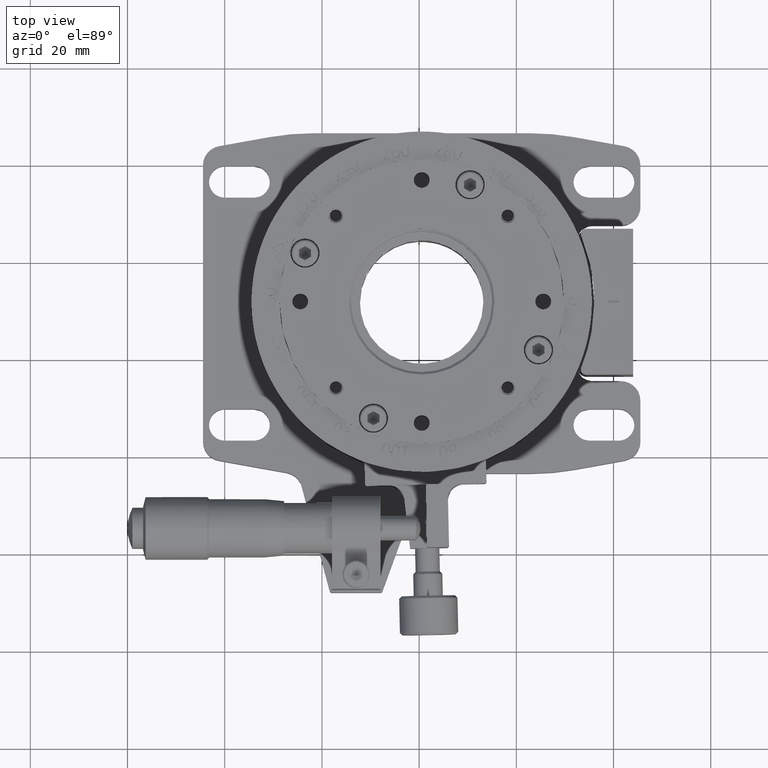
[diagram: clean part render]
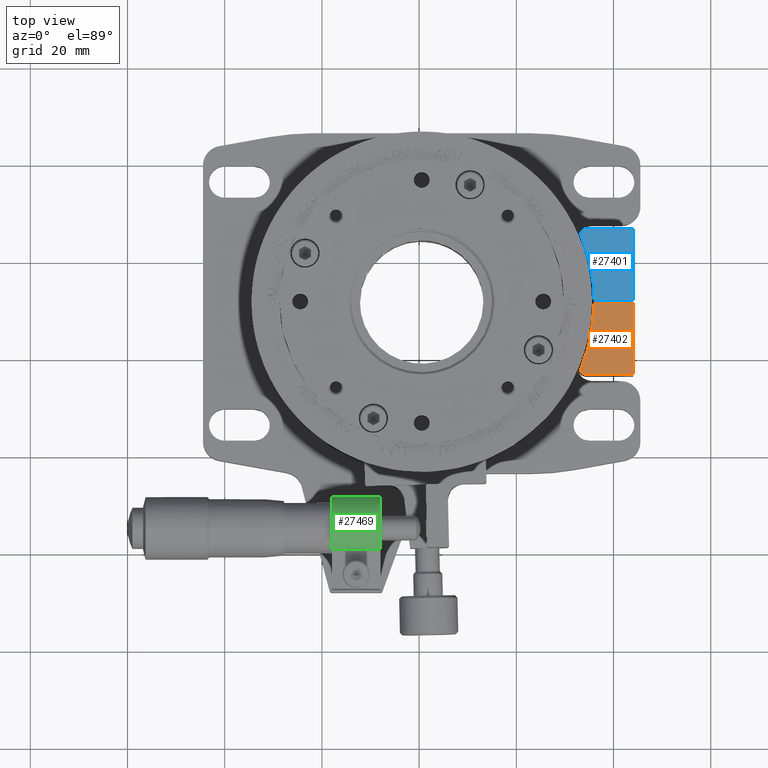
[diagram: same view with three faces highlighted in distinct colors, each labeled with its STEP entity id]
A machine part, top view with three faces highlighted in distinct colors.
Their STEP definitions:

[orange] entity #27402 — the highlighted face is a freeform B-spline surface patch.
#2525=(
BOUNDED_CURVE()
B_SPLINE_CURVE(2,(#161031,#161032,#161033,#161034,#161035),
 .UNSPECIFIED.,.F.,.F.)
B_SPLINE_CURVE_WITH_KNOTS((3,2,3),(-1.68370861659678,-0.841854308298392,
0.),.UNSPECIFIED.)
CURVE()
GEOMETRIC_REPRESENTATION_ITEM()
RATIONAL_B_SPLINE_CURVE((1.,0.912710491118177,1.,0.912710491118177,1.))
REPRESENTATION_ITEM('')
);
#2526=(
BOUNDED_CURVE()
B_SPLINE_CURVE(2,(#161036,#161037,#161038,#161039,#161040),
 .UNSPECIFIED.,.F.,.F.)
B_SPLINE_CURVE_WITH_KNOTS((3,2,3),(-1.68370861659678,-0.841854308298392,
0.),.UNSPECIFIED.)
CURVE()
GEOMETRIC_REPRESENTATION_ITEM()
RATIONAL_B_SPLINE_CURVE((1.,0.912710491118177,1.,0.912710491118177,1.))
REPRESENTATION_ITEM('')
);
#2527=(
BOUNDED_CURVE()
B_SPLINE_CURVE(2,(#161041,#161042,#161043),.UNSPECIFIED.,.F.,.F.)
B_SPLINE_CURVE_WITH_KNOTS((3,3),(-0.5591717524736,0.),.UNSPECIFIED.)
CURVE()
GEOMETRIC_REPRESENTATION_ITEM()
RATIONAL_B_SPLINE_CURVE((1.,0.990244869044745,1.))
REPRESENTATION_ITEM('')
);
#2528=(
BOUNDED_CURVE()
B_SPLINE_CURVE(2,(#161044,#161045,#161046),.UNSPECIFIED.,.F.,.F.)
B_SPLINE_CURVE_WITH_KNOTS((3,3),(-0.5591717524736,0.),.UNSPECIFIED.)
CURVE()
GEOMETRIC_REPRESENTATION_ITEM()
RATIONAL_B_SPLINE_CURVE((1.,0.990244869044745,1.))
REPRESENTATION_ITEM('')
);
#2529=(
BOUNDED_CURVE()
B_SPLINE_CURVE(2,(#161059,#161060,#161061),.UNSPECIFIED.,.F.,.F.)
B_SPLINE_CURVE_WITH_KNOTS((3,3),(-13.7336838363691,0.),.UNSPECIFIED.)
CURVE()
GEOMETRIC_REPRESENTATION_ITEM()
RATIONAL_B_SPLINE_CURVE((1.,0.981350266102203,1.))
REPRESENTATION_ITEM('')
);
#2530=(
BOUNDED_CURVE()
B_SPLINE_CURVE(2,(#161062,#161063,#161064),.UNSPECIFIED.,.F.,.F.)
B_SPLINE_CURVE_WITH_KNOTS((3,3),(-13.7336838363691,0.),.UNSPECIFIED.)
CURVE()
GEOMETRIC_REPRESENTATION_ITEM()
RATIONAL_B_SPLINE_CURVE((1.,0.981350266102203,1.))
REPRESENTATION_ITEM('')
);
#27402=ADVANCED_FACE('',(#29732),#129710,.T.);
#29732=FACE_OUTER_BOUND('',#32137,.T.);
#32137=EDGE_LOOP('',(#37211,#37212,#37213,#37214,#37215,#37216));
#37211=ORIENTED_EDGE('',*,*,#86933,.T.);
#37212=ORIENTED_EDGE('',*,*,#86934,.T.);
#37213=ORIENTED_EDGE('',*,*,#86935,.T.);
#37214=ORIENTED_EDGE('',*,*,#86936,.T.);
#37215=ORIENTED_EDGE('',*,*,#86937,.T.);
#37216=ORIENTED_EDGE('',*,*,#86938,.T.);
#49885=PCURVE('',#129710,#62559);
#49886=PCURVE('',#129710,#62560);
#49887=PCURVE('',#129710,#62561);
#49888=PCURVE('',#129710,#62562);
#49889=PCURVE('',#129710,#62563);
#49890=PCURVE('',#129710,#62564);
#62559=DEFINITIONAL_REPRESENTATION('',(#2526),#230981);
#62560=DEFINITIONAL_REPRESENTATION('',(#2528),#230981);
#62561=DEFINITIONAL_REPRESENTATION('',(#100345),#230981);
#62562=DEFINITIONAL_REPRESENTATION('',(#100347),#230981);
#62563=DEFINITIONAL_REPRESENTATION('',(#100349),#230981);
#62564=DEFINITIONAL_REPRESENTATION('',(#2530),#230981);
#74833=SURFACE_CURVE('',#2525,(#49885),.PCURVE_S1.);
#74834=SURFACE_CURVE('',#2527,(#49886),.PCURVE_S1.);
#74835=SURFACE_CURVE('',#100344,(#49887),.PCURVE_S1.);
#74836=SURFACE_CURVE('',#100346,(#49888),.PCURVE_S1.);
#74837=SURFACE_CURVE('',#100348,(#49889),.PCURVE_S1.);
#74838=SURFACE_CURVE('',#2529,(#49890),.PCURVE_S1.);
#86933=EDGE_CURVE('',#120280,#120281,#74833,.T.);
#86934=EDGE_CURVE('',#120281,#120282,#74834,.T.);
#86935=EDGE_CURVE('',#120282,#120283,#74835,.T.);
#86936=EDGE_CURVE('',#120283,#120284,#74836,.T.);
#86937=EDGE_CURVE('',#120284,#120285,#74837,.T.);
#86938=EDGE_CURVE('',#120285,#120280,#74838,.T.);
#100344=B_SPLINE_CURVE_WITH_KNOTS('',1,(#161047,#161048),.UNSPECIFIED.,
 .F.,.F.,(2,2),(-9.4996337360504,0.),.UNSPECIFIED.);
#100345=B_SPLINE_CURVE_WITH_KNOTS('',1,(#161049,#161050),.UNSPECIFIED.,
 .F.,.F.,(2,2),(-9.4996337360504,0.),.UNSPECIFIED.);
#100346=B_SPLINE_CURVE_WITH_KNOTS('',1,(#161051,#161052),.UNSPECIFIED.,
 .F.,.F.,(2,2),(-14.8000000000001,0.),.UNSPECIFIED.);
#100347=B_SPLINE_CURVE_WITH_KNOTS('',1,(#161053,#161054),.UNSPECIFIED.,
 .F.,.F.,(2,2),(-14.8000000000001,0.),.UNSPECIFIED.);
#100348=B_SPLINE_CURVE_WITH_KNOTS('',1,(#161055,#161056),.UNSPECIFIED.,
 .F.,.F.,(2,2),(-8.0005633847521,0.),.UNSPECIFIED.);
#100349=B_SPLINE_CURVE_WITH_KNOTS('',1,(#161057,#161058),.UNSPECIFIED.,
 .F.,.F.,(2,2),(-8.0005633847521,0.),.UNSPECIFIED.);
#120280=VERTEX_POINT('',#161025);
#120281=VERTEX_POINT('',#161026);
#120282=VERTEX_POINT('',#161027);
#120283=VERTEX_POINT('',#161028);
#120284=VERTEX_POINT('',#161029);
#120285=VERTEX_POINT('',#161030);
#129710=B_SPLINE_SURFACE_WITH_KNOTS('',1,1,((#161021,#161022),(#161023,
#161024)),.UNSPECIFIED.,.F.,.F.,.F.,(2,2),(2,2),(-7.7837949258824,5.3331486559036),
(-8.54829662424771,9.28370337575243),.UNSPECIFIED.);
#161021=CARTESIAN_POINT('',(76.5057687860795,-51.5159999999999,46.1953598283897));
#161022=CARTESIAN_POINT('',(76.5057687860795,-33.6839999999998,46.1953598283897));
#161023=CARTESIAN_POINT('',(89.6227123678655,-51.5159999999999,46.1953598283897));
#161024=CARTESIAN_POINT('',(89.6227123678655,-33.6839999999998,46.1953598283897));
#161025=CARTESIAN_POINT('',(77.8000859700582,-48.5786719985623,46.1953598283897));
#161026=CARTESIAN_POINT('',(78.4480847420327,-49.9223396026776,46.1953598283897));
#161027=CARTESIAN_POINT('',(78.9999999999996,-49.9999999999998,46.1953598283897));
#161028=CARTESIAN_POINT('',(88.49963373605,-49.9999999999999,46.1953598283897));
#161029=CARTESIAN_POINT('',(88.4996337360499,-35.1999999999998,46.1953598283897));
#161030=CARTESIAN_POINT('',(80.4990703512978,-35.1999999999998,46.1953598283897));
#161031=CARTESIAN_POINT('',(77.8000859700582,-48.5786719985623,46.1953598283897));
#161032=CARTESIAN_POINT('',(77.628847417895,-48.9923134762742,46.1953598283897));
#161033=CARTESIAN_POINT('',(77.8233153993984,-49.3955554854953,46.1953598283897));
#161034=CARTESIAN_POINT('',(78.0177833809018,-49.7987974947164,46.1953598283897));
#161035=CARTESIAN_POINT('',(78.4480847420327,-49.9223396026776,46.1953598283897));
#161036=CARTESIAN_POINT('',(-6.48947774190368,-5.61096862281011));
#161037=CARTESIAN_POINT('',(-6.66071629406691,-6.02461010052202));
#161038=CARTESIAN_POINT('',(-6.46624831256354,-6.42785210974309));
#161039=CARTESIAN_POINT('',(-6.27178033106014,-6.83109411896418));
#161040=CARTESIAN_POINT('',(-5.84147896992918,-6.95463622692537));
#161041=CARTESIAN_POINT('',(78.4480847420327,-49.9223396026776,46.1953598283897));
#161042=CARTESIAN_POINT('',(78.7185785455238,-49.9999999999998,46.1953598283897));
#161043=CARTESIAN_POINT('',(78.9999999999996,-49.9999999999998,46.1953598283897));
#161044=CARTESIAN_POINT('',(-5.84147896992918,-6.95463622692537));
#161045=CARTESIAN_POINT('',(-5.57098516643815,-7.03229662424761));
#161046=CARTESIAN_POINT('',(-5.2895637119623,-7.0322966242476));
#161047=CARTESIAN_POINT('',(78.9999999999996,-49.9999999999998,46.1953598283897));
#161048=CARTESIAN_POINT('',(88.49963373605,-49.9999999999999,46.1953598283897));
#161049=CARTESIAN_POINT('',(-5.2895637119623,-7.0322966242476));
#161050=CARTESIAN_POINT('',(4.2100700240881,-7.0322966242477));
#161051=CARTESIAN_POINT('',(88.49963373605,-49.9999999999999,46.1953598283897));
#161052=CARTESIAN_POINT('',(88.4996337360499,-35.1999999999998,46.1953598283897));
#161053=CARTESIAN_POINT('',(4.2100700240881,-7.0322966242477));
#161054=CARTESIAN_POINT('',(4.210070024088,7.76770337575241));
#161055=CARTESIAN_POINT('',(88.4996337360499,-35.1999999999998,46.1953598283897));
#161056=CARTESIAN_POINT('',(80.4990703512978,-35.1999999999998,46.1953598283897));
#161057=CARTESIAN_POINT('',(4.210070024088,7.76770337575241));
#161058=CARTESIAN_POINT('',(-3.79049336066407,7.76770337575241));
#161059=CARTESIAN_POINT('',(80.4990703512978,-35.1999999999998,46.1953598283897));
#161060=CARTESIAN_POINT('',(80.4598934422264,-42.1536778642504,46.1953598283897));
#161061=CARTESIAN_POINT('',(77.8000859700582,-48.5786719985623,46.1953598283897));
#161062=CARTESIAN_POINT('',(-3.79049336066407,7.76770337575241));
#161063=CARTESIAN_POINT('',(-3.82967026973554,0.814025511501801));
#161064=CARTESIAN_POINT('',(-6.48947774190368,-5.61096862281011));
#230981=(
GEOMETRIC_REPRESENTATION_CONTEXT(2)
PARAMETRIC_REPRESENTATION_CONTEXT()
REPRESENTATION_CONTEXT('pspace','')
);

[blue] entity #27401 — the highlighted face is a freeform B-spline surface patch.
#2519=(
BOUNDED_CURVE()
B_SPLINE_CURVE(2,(#160987,#160988,#160989,#160990,#160991),
 .UNSPECIFIED.,.F.,.F.)
B_SPLINE_CURVE_WITH_KNOTS((3,2,3),(-1.68370861659678,-0.841854308298392,
0.),.UNSPECIFIED.)
CURVE()
GEOMETRIC_REPRESENTATION_ITEM()
RATIONAL_B_SPLINE_CURVE((1.,0.912710530924435,1.,0.912710530924435,1.))
REPRESENTATION_ITEM('')
);
#2520=(
BOUNDED_CURVE()
B_SPLINE_CURVE(2,(#160992,#160993,#160994,#160995,#160996),
 .UNSPECIFIED.,.F.,.F.)
B_SPLINE_CURVE_WITH_KNOTS((3,2,3),(-1.68370861659678,-0.841854308298392,
0.),.UNSPECIFIED.)
CURVE()
GEOMETRIC_REPRESENTATION_ITEM()
RATIONAL_B_SPLINE_CURVE((1.,0.912710530924435,1.,0.912710530924435,1.))
REPRESENTATION_ITEM('')
);
#2521=(
BOUNDED_CURVE()
B_SPLINE_CURVE(2,(#160997,#160998,#160999),.UNSPECIFIED.,.F.,.F.)
B_SPLINE_CURVE_WITH_KNOTS((3,3),(-13.733683836369,0.),.UNSPECIFIED.)
CURVE()
GEOMETRIC_REPRESENTATION_ITEM()
RATIONAL_B_SPLINE_CURVE((1.,0.981350274912163,1.))
REPRESENTATION_ITEM('')
);
#2522=(
BOUNDED_CURVE()
B_SPLINE_CURVE(2,(#161000,#161001,#161002),.UNSPECIFIED.,.F.,.F.)
B_SPLINE_CURVE_WITH_KNOTS((3,3),(-13.733683836369,0.),.UNSPECIFIED.)
CURVE()
GEOMETRIC_REPRESENTATION_ITEM()
RATIONAL_B_SPLINE_CURVE((1.,0.981350274912163,1.))
REPRESENTATION_ITEM('')
);
#2523=(
BOUNDED_CURVE()
B_SPLINE_CURVE(2,(#161015,#161016,#161017),.UNSPECIFIED.,.F.,.F.)
B_SPLINE_CURVE_WITH_KNOTS((3,3),(-0.559171752473628,0.),.UNSPECIFIED.)
CURVE()
GEOMETRIC_REPRESENTATION_ITEM()
RATIONAL_B_SPLINE_CURVE((1.,0.990244873673663,1.))
REPRESENTATION_ITEM('')
);
#2524=(
BOUNDED_CURVE()
B_SPLINE_CURVE(2,(#161018,#161019,#161020),.UNSPECIFIED.,.F.,.F.)
B_SPLINE_CURVE_WITH_KNOTS((3,3),(-0.559171752473628,0.),.UNSPECIFIED.)
CURVE()
GEOMETRIC_REPRESENTATION_ITEM()
RATIONAL_B_SPLINE_CURVE((1.,0.990244873673663,1.))
REPRESENTATION_ITEM('')
);
#27401=ADVANCED_FACE('',(#29731),#129709,.T.);
#29731=FACE_OUTER_BOUND('',#32136,.T.);
#32136=EDGE_LOOP('',(#37205,#37206,#37207,#37208,#37209,#37210));
#37205=ORIENTED_EDGE('',*,*,#86927,.T.);
#37206=ORIENTED_EDGE('',*,*,#86928,.T.);
#37207=ORIENTED_EDGE('',*,*,#86929,.T.);
#37208=ORIENTED_EDGE('',*,*,#86930,.T.);
#37209=ORIENTED_EDGE('',*,*,#86931,.T.);
#37210=ORIENTED_EDGE('',*,*,#86932,.T.);
#49879=PCURVE('',#129709,#62553);
#49880=PCURVE('',#129709,#62554);
#49881=PCURVE('',#129709,#62555);
#49882=PCURVE('',#129709,#62556);
#49883=PCURVE('',#129709,#62557);
#49884=PCURVE('',#129709,#62558);
#62553=DEFINITIONAL_REPRESENTATION('',(#2520),#230981);
#62554=DEFINITIONAL_REPRESENTATION('',(#2522),#230981);
#62555=DEFINITIONAL_REPRESENTATION('',(#100339),#230981);
#62556=DEFINITIONAL_REPRESENTATION('',(#100341),#230981);
#62557=DEFINITIONAL_REPRESENTATION('',(#100343),#230981);
#62558=DEFINITIONAL_REPRESENTATION('',(#2524),#230981);
#74827=SURFACE_CURVE('',#2519,(#49879),.PCURVE_S1.);
#74828=SURFACE_CURVE('',#2521,(#49880),.PCURVE_S1.);
#74829=SURFACE_CURVE('',#100338,(#49881),.PCURVE_S1.);
#74830=SURFACE_CURVE('',#100340,(#49882),.PCURVE_S1.);
#74831=SURFACE_CURVE('',#100342,(#49883),.PCURVE_S1.);
#74832=SURFACE_CURVE('',#2523,(#49884),.PCURVE_S1.);
#86927=EDGE_CURVE('',#120274,#120275,#74827,.T.);
#86928=EDGE_CURVE('',#120275,#120276,#74828,.T.);
#86929=EDGE_CURVE('',#120276,#120277,#74829,.T.);
#86930=EDGE_CURVE('',#120277,#120278,#74830,.T.);
#86931=EDGE_CURVE('',#120278,#120279,#74831,.T.);
#86932=EDGE_CURVE('',#120279,#120274,#74832,.T.);
#100338=B_SPLINE_CURVE_WITH_KNOTS('',1,(#161003,#161004),.UNSPECIFIED.,
 .F.,.F.,(2,2),(-8.0005633847521,0.),.UNSPECIFIED.);
#100339=B_SPLINE_CURVE_WITH_KNOTS('',1,(#161005,#161006),.UNSPECIFIED.,
 .F.,.F.,(2,2),(-8.0005633847521,0.),.UNSPECIFIED.);
#100340=B_SPLINE_CURVE_WITH_KNOTS('',1,(#161007,#161008),.UNSPECIFIED.,
 .F.,.F.,(2,2),(-14.8,0.),.UNSPECIFIED.);
#100341=B_SPLINE_CURVE_WITH_KNOTS('',1,(#161009,#161010),.UNSPECIFIED.,
 .F.,.F.,(2,2),(-14.8,0.),.UNSPECIFIED.);
#100342=B_SPLINE_CURVE_WITH_KNOTS('',1,(#161011,#161012),.UNSPECIFIED.,
 .F.,.F.,(2,2),(-9.4996337360504,0.),.UNSPECIFIED.);
#100343=B_SPLINE_CURVE_WITH_KNOTS('',1,(#161013,#161014),.UNSPECIFIED.,
 .F.,.F.,(2,2),(-9.4996337360504,0.),.UNSPECIFIED.);
#120274=VERTEX_POINT('',#160981);
#120275=VERTEX_POINT('',#160982);
#120276=VERTEX_POINT('',#160983);
#120277=VERTEX_POINT('',#160984);
#120278=VERTEX_POINT('',#160985);
#120279=VERTEX_POINT('',#160986);
#129709=B_SPLINE_SURFACE_WITH_KNOTS('',1,1,((#160977,#160978),(#160979,
#160980)),.UNSPECIFIED.,.F.,.F.,.F.,(2,2),(2,2),(-7.78379492588242,5.3331486559036),
(-9.2837033757523,8.5482966242477),.UNSPECIFIED.);
#160977=CARTESIAN_POINT('',(76.5057687860795,-36.3159999999998,46.1953598283897));
#160978=CARTESIAN_POINT('',(76.5057687860795,-18.4839999999998,46.1953598283897));
#160979=CARTESIAN_POINT('',(89.6227123678655,-36.3159999999998,46.1953598283897));
#160980=CARTESIAN_POINT('',(89.6227123678655,-18.4839999999998,46.1953598283897));
#160981=CARTESIAN_POINT('',(78.4480847420327,-20.0776603973221,46.1953598283897));
#160982=CARTESIAN_POINT('',(77.8000859700582,-21.4213280014374,46.1953598283897));
#160983=CARTESIAN_POINT('',(80.4990703512978,-34.7999999999998,46.1953598283897));
#160984=CARTESIAN_POINT('',(88.4996337360499,-34.7999999999998,46.1953598283897));
#160985=CARTESIAN_POINT('',(88.49963373605,-19.9999999999998,46.1953598283897));
#160986=CARTESIAN_POINT('',(78.9999999999996,-19.9999999999998,46.1953598283897));
#160987=CARTESIAN_POINT('',(78.4480847420327,-20.0776603973221,46.1953598283897));
#160988=CARTESIAN_POINT('',(78.0177833301028,-20.2012026106184,46.1953598283897));
#160989=CARTESIAN_POINT('',(77.8233153993984,-20.6044445145044,46.1953598283897));
#160990=CARTESIAN_POINT('',(77.628847468694,-21.0076864183905,46.1953598283897));
#160991=CARTESIAN_POINT('',(77.8000859700582,-21.4213280014374,46.1953598283897));
#160992=CARTESIAN_POINT('',(-5.8414789699292,6.95463622692542));
#160993=CARTESIAN_POINT('',(-6.27178038185914,6.83109401362914));
#160994=CARTESIAN_POINT('',(-6.46624831256352,6.42785210974309));
#160995=CARTESIAN_POINT('',(-6.66071624326791,6.02461020585704));
#160996=CARTESIAN_POINT('',(-6.48947774190367,5.61096862281011));
#160997=CARTESIAN_POINT('',(77.8000859700582,-21.4213280014374,46.1953598283897));
#160998=CARTESIAN_POINT('',(80.4598934517442,-27.8463238251412,46.1953598283897));
#160999=CARTESIAN_POINT('',(80.4990703512978,-34.7999999999998,46.1953598283897));
#161000=CARTESIAN_POINT('',(-6.48947774190367,5.61096862281011));
#161001=CARTESIAN_POINT('',(-3.82967026021769,-0.814027200893704));
#161002=CARTESIAN_POINT('',(-3.79049336066407,-7.7677033757523));
#161003=CARTESIAN_POINT('',(80.4990703512978,-34.7999999999998,46.1953598283897));
#161004=CARTESIAN_POINT('',(88.4996337360499,-34.7999999999998,46.1953598283897));
#161005=CARTESIAN_POINT('',(-3.79049336066407,-7.7677033757523));
#161006=CARTESIAN_POINT('',(4.210070024088,-7.7677033757523));
#161007=CARTESIAN_POINT('',(88.4996337360499,-34.7999999999998,46.1953598283897));
#161008=CARTESIAN_POINT('',(88.49963373605,-19.9999999999998,46.1953598283897));
#161009=CARTESIAN_POINT('',(4.210070024088,-7.7677033757523));
#161010=CARTESIAN_POINT('',(4.2100700240881,7.0322966242477));
#161011=CARTESIAN_POINT('',(88.49963373605,-19.9999999999998,46.1953598283897));
#161012=CARTESIAN_POINT('',(78.9999999999996,-19.9999999999998,46.1953598283897));
#161013=CARTESIAN_POINT('',(4.2100700240881,7.0322966242477));
#161014=CARTESIAN_POINT('',(-5.2895637119623,7.0322966242477));
#161015=CARTESIAN_POINT('',(78.9999999999996,-19.9999999999998,46.1953598283897));
#161016=CARTESIAN_POINT('',(78.7185786132808,-19.9999999999998,46.1953598283897));
#161017=CARTESIAN_POINT('',(78.4480847420327,-20.0776603973221,46.1953598283897));
#161018=CARTESIAN_POINT('',(-5.2895637119623,7.0322966242477));
#161019=CARTESIAN_POINT('',(-5.57098509868109,7.0322966242477));
#161020=CARTESIAN_POINT('',(-5.8414789699292,6.95463622692542));
#230981=(
GEOMETRIC_REPRESENTATION_CONTEXT(2)
PARAMETRIC_REPRESENTATION_CONTEXT()
REPRESENTATION_CONTEXT('pspace','')
);

[green] entity #27469 — the highlighted face is a freeform B-spline surface patch.
#422=(
BOUNDED_SURFACE()
B_SPLINE_SURFACE(2,1,((#164168,#164169),(#164170,#164171),(#164172,#164173),
(#164174,#164175),(#164176,#164177),(#164178,#164179),(#164180,#164181),
(#164182,#164183),(#164184,#164185)),.UNSPECIFIED.,.T.,.F.,.F.)
B_SPLINE_SURFACE_WITH_KNOTS((3,2,2,2,3),(2,2),(0.,1.5707963267949,3.14159265358979,
4.71238898038469,6.28318530717959),(0.,12.0720000000003),.UNSPECIFIED.)
GEOMETRIC_REPRESENTATION_ITEM()
RATIONAL_B_SPLINE_SURFACE(((1.,1.),(0.707106781186548,0.707106781186548),
(1.,1.),(0.707106781186548,0.707106781186548),(1.,1.),(0.707106781186548,
0.707106781186548),(1.,1.),(0.707106781186548,0.707106781186548),(1.,1.)))
REPRESENTATION_ITEM('')
SURFACE()
);
#2732=(
BOUNDED_CURVE()
B_SPLINE_CURVE(2,(#164194,#164195,#164196,#164197,#164198),
 .UNSPECIFIED.,.F.,.F.)
B_SPLINE_CURVE_WITH_KNOTS((3,2,3),(0.,8.29923078914951,16.598461578299),
 .UNSPECIFIED.)
CURVE()
GEOMETRIC_REPRESENTATION_ITEM()
RATIONAL_B_SPLINE_CURVE((1.,0.803048832144117,1.,0.803048832144117,1.))
REPRESENTATION_ITEM('')
);
#2733=(
BOUNDED_CURVE()
B_SPLINE_CURVE(2,(#164205,#164206,#164207,#164208,#164209),
 .UNSPECIFIED.,.F.,.F.)
B_SPLINE_CURVE_WITH_KNOTS((3,2,3),(-16.598461578299,-8.29923078914949,0.),
 .UNSPECIFIED.)
CURVE()
GEOMETRIC_REPRESENTATION_ITEM()
RATIONAL_B_SPLINE_CURVE((1.,0.803048832144119,1.,0.803048832144119,1.))
REPRESENTATION_ITEM('')
);
#27469=ADVANCED_FACE('',(#29799),#422,.T.);
#29799=FACE_OUTER_BOUND('',#32211,.T.);
#32211=EDGE_LOOP('',(#37539,#37540,#37541,#37542));
#37539=ORIENTED_EDGE('',*,*,#87221,.T.);
#37540=ORIENTED_EDGE('',*,*,#87222,.T.);
#37541=ORIENTED_EDGE('',*,*,#87223,.T.);
#37542=ORIENTED_EDGE('',*,*,#87224,.T.);
#50213=PCURVE('',#422,#62887);
#50214=PCURVE('',#422,#62888);
#50215=PCURVE('',#422,#62889);
#50216=PCURVE('',#422,#62890);
#62887=DEFINITIONAL_REPRESENTATION('',(#100754),#230981);
#62888=DEFINITIONAL_REPRESENTATION('',(#100755),#230981);
#62889=DEFINITIONAL_REPRESENTATION('',(#100757),#230981);
#62890=DEFINITIONAL_REPRESENTATION('',(#100758),#230981);
#75121=SURFACE_CURVE('',#100753,(#50213),.PCURVE_S1.);
#75122=SURFACE_CURVE('',#2732,(#50214),.PCURVE_S1.);
#75123=SURFACE_CURVE('',#100756,(#50215),.PCURVE_S1.);
#75124=SURFACE_CURVE('',#2733,(#50216),.PCURVE_S1.);
#87221=EDGE_CURVE('',#120534,#120535,#75121,.T.);
#87222=EDGE_CURVE('',#120535,#120536,#75122,.T.);
#87223=EDGE_CURVE('',#120536,#120537,#75123,.T.);
#87224=EDGE_CURVE('',#120537,#120534,#75124,.T.);
#100753=B_SPLINE_CURVE_WITH_KNOTS('',1,(#164190,#164191),.UNSPECIFIED.,
 .F.,.F.,(2,2),(-10.,0.),.UNSPECIFIED.);
#100754=B_SPLINE_CURVE_WITH_KNOTS('',1,(#164192,#164193),.UNSPECIFIED.,
 .F.,.F.,(2,2),(-10.,0.),.UNSPECIFIED.);
#100755=B_SPLINE_CURVE_WITH_KNOTS('',1,(#164199,#164200),.UNSPECIFIED.,
 .F.,.F.,(2,2),(0.,16.598461578299),.UNSPECIFIED.);
#100756=B_SPLINE_CURVE_WITH_KNOTS('',1,(#164201,#164202),.UNSPECIFIED.,
 .F.,.F.,(2,2),(-10.,0.),.UNSPECIFIED.);
#100757=B_SPLINE_CURVE_WITH_KNOTS('',1,(#164203,#164204),.UNSPECIFIED.,
 .F.,.F.,(2,2),(-10.,0.),.UNSPECIFIED.);
#100758=B_SPLINE_CURVE_WITH_KNOTS('',1,(#164210,#164211),.UNSPECIFIED.,
 .F.,.F.,(2,2),(-16.598461578299,0.),.UNSPECIFIED.);
#120534=VERTEX_POINT('',#164186);
#120535=VERTEX_POINT('',#164187);
#120536=VERTEX_POINT('',#164188);
#120537=VERTEX_POINT('',#164189);
#164168=CARTESIAN_POINT('',(25.4639999999997,-87.9999999999995,37.4953598283897));
#164169=CARTESIAN_POINT('',(37.536,-87.9999999999993,37.4953598283897));
#164170=CARTESIAN_POINT('',(25.4639999999997,-87.9999999999995,30.9953598283897));
#164171=CARTESIAN_POINT('',(37.536,-87.9999999999993,30.9953598283898));
#164172=CARTESIAN_POINT('',(25.4639999999996,-81.4999999999995,30.9953598283897));
#164173=CARTESIAN_POINT('',(37.5359999999999,-81.4999999999993,30.9953598283898));
#164174=CARTESIAN_POINT('',(25.4639999999995,-74.9999999999995,30.9953598283897));
#164175=CARTESIAN_POINT('',(37.5359999999998,-74.9999999999994,30.9953598283898));
#164176=CARTESIAN_POINT('',(25.4639999999995,-74.9999999999995,37.4953598283897));
#164177=CARTESIAN_POINT('',(37.5359999999998,-74.9999999999994,37.4953598283897));
#164178=CARTESIAN_POINT('',(25.4639999999995,-74.9999999999995,43.9953598283897));
#164179=CARTESIAN_POINT('',(37.5359999999998,-74.9999999999994,43.9953598283896));
#164180=CARTESIAN_POINT('',(25.4639999999996,-81.4999999999995,43.9953598283897));
#164181=CARTESIAN_POINT('',(37.5359999999999,-81.4999999999993,43.9953598283896));
#164182=CARTESIAN_POINT('',(25.4639999999997,-87.9999999999995,43.9953598283897));
#164183=CARTESIAN_POINT('',(37.536,-87.9999999999993,43.9953598283896));
#164184=CARTESIAN_POINT('',(25.4639999999997,-87.9999999999995,37.4953598283897));
#164185=CARTESIAN_POINT('',(37.536,-87.9999999999993,37.4953598283897));
#164186=CARTESIAN_POINT('',(26.4999999999997,-85.8944216716481,42.2848335126002));
#164187=CARTESIAN_POINT('',(36.4999999999997,-85.8944216716479,42.2848335126002));
#164188=CARTESIAN_POINT('',(36.4999999999996,-75.1869282212655,35.9477407807706));
#164189=CARTESIAN_POINT('',(26.4999999999996,-75.1869282212656,35.9477407807706));
#164190=CARTESIAN_POINT('',(26.4999999999997,-85.8944216716481,42.2848335126002));
#164191=CARTESIAN_POINT('',(36.4999999999997,-85.8944216716479,42.2848335126002));
#164192=CARTESIAN_POINT('',(5.45702451698513,1.03600000000008));
#164193=CARTESIAN_POINT('',(5.45702451698512,11.0360000000001));
#164194=CARTESIAN_POINT('',(36.4999999999997,-85.8944216716479,42.2848335126002));
#164195=CARTESIAN_POINT('',(36.4999999999997,-82.3403280713054,45.5457734342249));
#164196=CARTESIAN_POINT('',(36.4999999999997,-78.189412343509,43.089107174194));
#164197=CARTESIAN_POINT('',(36.4999999999996,-74.0384966157125,40.6324409141632));
#164198=CARTESIAN_POINT('',(36.4999999999996,-75.1869282212655,35.9477407807706));
#164199=CARTESIAN_POINT('',(5.45702451698512,11.0360000000001));
#164200=CARTESIAN_POINT('',(2.88606155937953,11.0360000000001));
#164201=CARTESIAN_POINT('',(36.4999999999996,-75.1869282212655,35.9477407807706));
#164202=CARTESIAN_POINT('',(26.4999999999996,-75.1869282212656,35.9477407807706));
#164203=CARTESIAN_POINT('',(2.88606155937953,11.0360000000001));
#164204=CARTESIAN_POINT('',(2.88606155937954,1.03600000000013));
#164205=CARTESIAN_POINT('',(26.4999999999996,-75.1869282212656,35.9477407807706));
#164206=CARTESIAN_POINT('',(26.4999999999996,-74.0384966157127,40.6324409141632));
#164207=CARTESIAN_POINT('',(26.4999999999996,-78.1894123435091,43.089107174194));
#164208=CARTESIAN_POINT('',(26.4999999999997,-82.3403280713055,45.5457734342249));
#164209=CARTESIAN_POINT('',(26.4999999999997,-85.8944216716481,42.2848335126002));
#164210=CARTESIAN_POINT('',(2.88606155937954,1.03600000000013));
#164211=CARTESIAN_POINT('',(5.45702451698513,1.03600000000008));
#230981=(
GEOMETRIC_REPRESENTATION_CONTEXT(2)
PARAMETRIC_REPRESENTATION_CONTEXT()
REPRESENTATION_CONTEXT('pspace','')
);